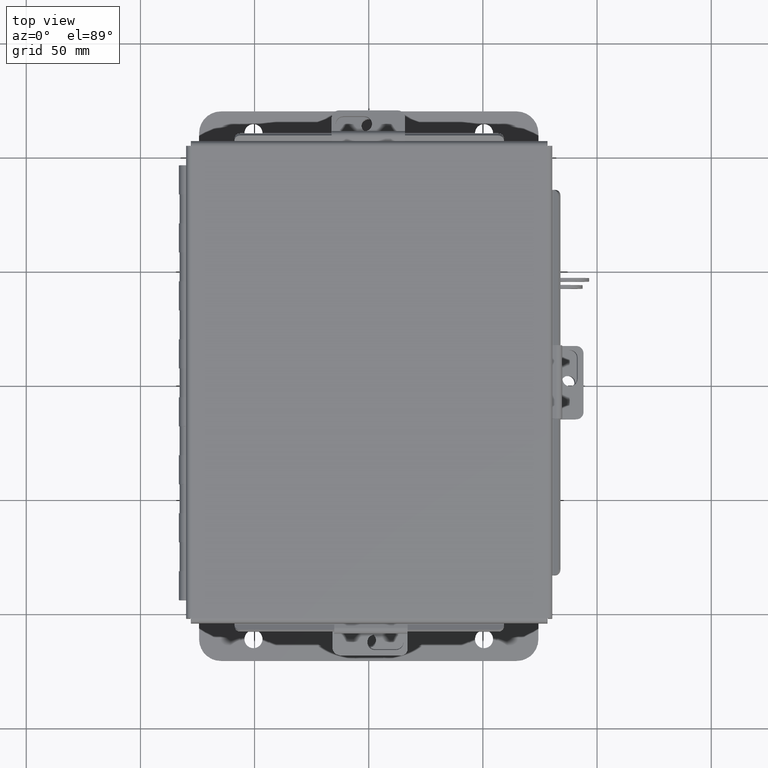
[diagram: clean part render]
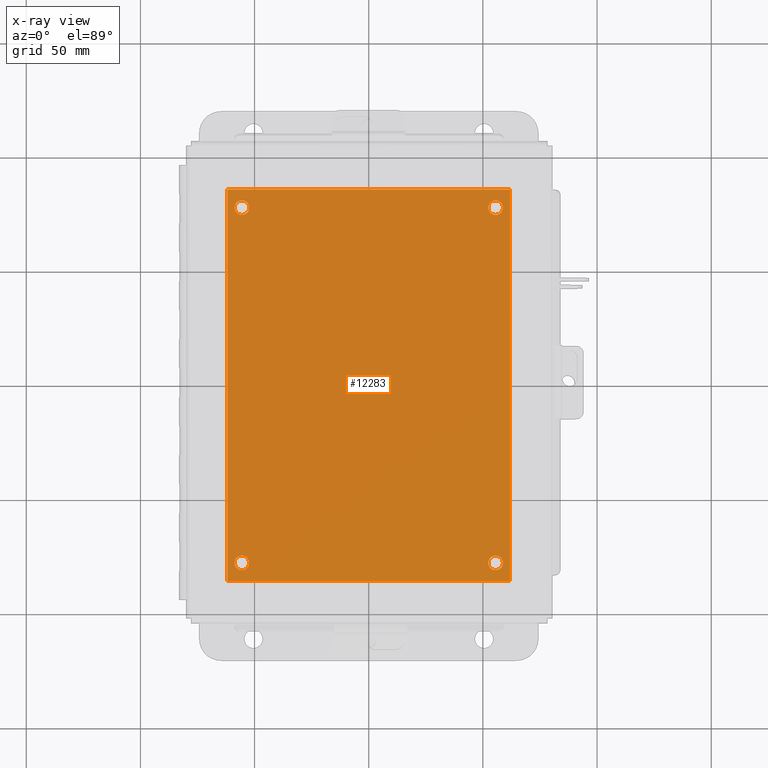
[diagram: x-ray — body ghosted, one internal face saturated and labeled with its STEP entity id]
A machine part, top view, then the same camera in x-ray: the body is ghosted and one INTERNAL B-rep face — a face not visible from any outside direction — is saturated and labeled: STEP entity #12283.
In plain terms, the highlighted planar face has unit normal (0, 0, -1).
Its self-contained STEP definition (entity closure, byte-faithful):
#131 = CARTESIAN_POINT ( 'NONE',  ( 0.0000000000000000000, 0.0000000000000000000, 0.0000000000000000000 ) ) ;
#154 = CARTESIAN_POINT ( 'NONE',  ( 4.625000000000000900, 6.437999999999997900, 0.0000000000000000000 ) ) ;
#219 = LINE ( 'NONE', #12094, #2607 ) ;
#285 = DIRECTION ( 'NONE',  ( -0.0000000000000000000, -1.000000000000000000, -0.0000000000000000000 ) ) ;
#326 = VERTEX_POINT ( 'NONE', #8792 ) ;
#656 = AXIS2_PLACEMENT_3D ( 'NONE', #15209, #7934, #7824 ) ;
#830 = CARTESIAN_POINT ( 'NONE',  ( 0.1250000000000019200, 0.3120000000000015000, 0.0000000000000000000 ) ) ;
#1004 = CARTESIAN_POINT ( 'NONE',  ( 0.3750000000000001100, 6.437999999999997900, 0.0000000000000000000 ) ) ;
#1034 = CARTESIAN_POINT ( 'NONE',  ( 4.500000000000000900, 6.437999999999997900, 0.0000000000000000000 ) ) ;
#1039 = CARTESIAN_POINT ( 'NONE',  ( 0.0000000000000000000, 6.750000000000000000, 0.0000000000000000000 ) ) ;
#1257 = CARTESIAN_POINT ( 'NONE',  ( 0.2500000000000020000, 0.3120000000000015000, 0.0000000000000000000 ) ) ;
#1299 = CARTESIAN_POINT ( 'NONE',  ( 0.0000000000000000000, 0.0000000000000000000, 0.0000000000000000000 ) ) ;
#1339 = DIRECTION ( 'NONE',  ( -1.000000000000000000, 0.0000000000000000000, 0.0000000000000000000 ) ) ;
#1417 = CARTESIAN_POINT ( 'NONE',  ( 0.1250000000000000600, 6.437999999999997900, 0.0000000000000000000 ) ) ;
#1467 = EDGE_LOOP ( 'NONE', ( #8341, #14156 ) ) ;
#1742 = ORIENTED_EDGE ( 'NONE', *, *, #9047, .F. ) ;
#1763 = ORIENTED_EDGE ( 'NONE', *, *, #2657, .F. ) ;
#2012 = CARTESIAN_POINT ( 'NONE',  ( 4.625000000000000900, 6.437999999999997900, 0.0000000000000000000 ) ) ;
#2159 = EDGE_CURVE ( 'NONE', #10019, #13365, #11050, .T. ) ;
#2287 = FACE_BOUND ( 'NONE', #11553, .T. ) ;
#2421 = CARTESIAN_POINT ( 'NONE',  ( 4.625000000000001800, 0.3120000000000020500, 0.0000000000000000000 ) ) ;
#2448 = DIRECTION ( 'NONE',  ( -1.000000000000000000, 0.0000000000000000000, 0.0000000000000000000 ) ) ;
#2486 = DIRECTION ( 'NONE',  ( -1.000000000000000000, 0.0000000000000000000, -0.0000000000000000000 ) ) ;
#2496 = CIRCLE ( 'NONE', #3930, 0.1250000000000000300 ) ;
#2607 = VECTOR ( 'NONE', #285, 39.37007874015748100 ) ;
#2657 = EDGE_CURVE ( 'NONE', #11505, #8055, #2725, .T. ) ;
#2725 = CIRCLE ( 'NONE', #6700, 0.1249999999999999000 ) ;
#2949 = VERTEX_POINT ( 'NONE', #6803 ) ;
#3101 = CARTESIAN_POINT ( 'NONE',  ( 0.0000000000000000000, 6.750000000000000000, 0.0000000000000000000 ) ) ;
#3155 = CIRCLE ( 'NONE', #14985, 0.1250000000000000600 ) ;
#3167 = CARTESIAN_POINT ( 'NONE',  ( 0.2500000000000000600, 6.437999999999997900, 0.0000000000000000000 ) ) ;
#3205 = CARTESIAN_POINT ( 'NONE',  ( 4.750000000000000000, 6.437999999999997900, 0.0000000000000000000 ) ) ;
#3366 = AXIS2_PLACEMENT_3D ( 'NONE', #1299, #9588, #2486 ) ;
#3499 = VERTEX_POINT ( 'NONE', #13478 ) ;
#3551 = AXIS2_PLACEMENT_3D ( 'NONE', #154, #8424, #1339 ) ;
#3930 = AXIS2_PLACEMENT_3D ( 'NONE', #3167, #11443, #4330 ) ;
#4073 = CARTESIAN_POINT ( 'NONE',  ( 4.625000000000001800, 0.3120000000000020500, 0.0000000000000000000 ) ) ;
#4077 = VERTEX_POINT ( 'NONE', #10153 ) ;
#4084 = LINE ( 'NONE', #14297, #13212 ) ;
#4133 = AXIS2_PLACEMENT_3D ( 'NONE', #2421, #12104, #6760 ) ;
#4184 = CIRCLE ( 'NONE', #9713, 0.1250000000000000600 ) ;
#4330 = DIRECTION ( 'NONE',  ( 1.000000000000000000, 0.0000000000000000000, 0.0000000000000000000 ) ) ;
#4357 = EDGE_CURVE ( 'NONE', #3499, #326, #5293, .T. ) ;
#4387 = ORIENTED_EDGE ( 'NONE', *, *, #8292, .T. ) ;
#4478 = EDGE_CURVE ( 'NONE', #10815, #11488, #4184, .T. ) ;
#4759 = DIRECTION ( 'NONE',  ( 0.0000000000000000000, 1.000000000000000000, 0.0000000000000000000 ) ) ;
#5018 = FACE_OUTER_BOUND ( 'NONE', #10083, .T. ) ;
#5255 = DIRECTION ( 'NONE',  ( 1.000000000000000000, 0.0000000000000000000, 0.0000000000000000000 ) ) ;
#5293 = CIRCLE ( 'NONE', #4133, 0.1249999999999999000 ) ;
#5418 = FACE_BOUND ( 'NONE', #1467, .T. ) ;
#5514 = VERTEX_POINT ( 'NONE', #131 ) ;
#5559 = CIRCLE ( 'NONE', #14170, 0.1249999999999999000 ) ;
#5676 = ORIENTED_EDGE ( 'NONE', *, *, #11622, .T. ) ;
#5887 = DIRECTION ( 'NONE',  ( 0.0000000000000000000, 0.0000000000000000000, 1.000000000000000000 ) ) ;
#5949 = EDGE_CURVE ( 'NONE', #13365, #10019, #2496, .T. ) ;
#6700 = AXIS2_PLACEMENT_3D ( 'NONE', #2012, #13374, #13583 ) ;
#6760 = DIRECTION ( 'NONE',  ( 1.000000000000000000, 0.0000000000000000000, 0.0000000000000000000 ) ) ;
#6803 = CARTESIAN_POINT ( 'NONE',  ( 4.875000000000000000, 0.0000000000000000000, 0.0000000000000000000 ) ) ;
#7823 = CIRCLE ( 'NONE', #3551, 0.1249999999999999000 ) ;
#7824 = DIRECTION ( 'NONE',  ( 1.000000000000000000, 0.0000000000000000000, 0.0000000000000000000 ) ) ;
#7934 = DIRECTION ( 'NONE',  ( 0.0000000000000000000, 0.0000000000000000000, 1.000000000000000000 ) ) ;
#8055 = VERTEX_POINT ( 'NONE', #1034 ) ;
#8211 = FACE_BOUND ( 'NONE', #13097, .T. ) ;
#8292 = EDGE_CURVE ( 'NONE', #11467, #5514, #219, .T. ) ;
#8333 = VECTOR ( 'NONE', #11982, 39.37007874015748100 ) ;
#8341 = ORIENTED_EDGE ( 'NONE', *, *, #2159, .F. ) ;
#8424 = DIRECTION ( 'NONE',  ( 0.0000000000000000000, 0.0000000000000000000, 1.000000000000000000 ) ) ;
#8755 = CARTESIAN_POINT ( 'NONE',  ( 0.3750000000000020000, 0.3120000000000015000, 0.0000000000000000000 ) ) ;
#8792 = CARTESIAN_POINT ( 'NONE',  ( 4.500000000000002700, 0.3120000000000020500, 0.0000000000000000000 ) ) ;
#9047 = EDGE_CURVE ( 'NONE', #326, #3499, #5559, .T. ) ;
#9326 = DIRECTION ( 'NONE',  ( -1.000000000000000000, -0.0000000000000000000, -0.0000000000000000000 ) ) ;
#9550 = DIRECTION ( 'NONE',  ( 0.0000000000000000000, 0.0000000000000000000, 1.000000000000000000 ) ) ;
#9588 = DIRECTION ( 'NONE',  ( 0.0000000000000000000, 0.0000000000000000000, -1.000000000000000000 ) ) ;
#9713 = AXIS2_PLACEMENT_3D ( 'NONE', #12813, #5887, #10483 ) ;
#10019 = VERTEX_POINT ( 'NONE', #1004 ) ;
#10083 = EDGE_LOOP ( 'NONE', ( #4387, #11743, #14712, #5676 ) ) ;
#10153 = CARTESIAN_POINT ( 'NONE',  ( 4.875000000000000000, 6.750000000000000000, 0.0000000000000000000 ) ) ;
#10230 = EDGE_LOOP ( 'NONE', ( #12645, #1742 ) ) ;
#10483 = DIRECTION ( 'NONE',  ( -1.000000000000000000, 0.0000000000000000000, 0.0000000000000000000 ) ) ;
#10790 = CARTESIAN_POINT ( 'NONE',  ( 0.0000000000000000000, 0.0000000000000000000, 0.0000000000000000000 ) ) ;
#10815 = VERTEX_POINT ( 'NONE', #8755 ) ;
#11050 = CIRCLE ( 'NONE', #656, 0.1250000000000000300 ) ;
#11443 = DIRECTION ( 'NONE',  ( 0.0000000000000000000, 0.0000000000000000000, 1.000000000000000000 ) ) ;
#11467 = VERTEX_POINT ( 'NONE', #3101 ) ;
#11488 = VERTEX_POINT ( 'NONE', #830 ) ;
#11505 = VERTEX_POINT ( 'NONE', #3205 ) ;
#11553 = EDGE_LOOP ( 'NONE', ( #13704, #14514 ) ) ;
#11622 = EDGE_CURVE ( 'NONE', #4077, #11467, #12509, .T. ) ;
#11743 = ORIENTED_EDGE ( 'NONE', *, *, #15340, .T. ) ;
#11871 = LINE ( 'NONE', #10790, #8333 ) ;
#11982 = DIRECTION ( 'NONE',  ( 1.000000000000000000, 0.0000000000000000000, 0.0000000000000000000 ) ) ;
#12094 = CARTESIAN_POINT ( 'NONE',  ( 0.0000000000000000000, 0.0000000000000000000, 0.0000000000000000000 ) ) ;
#12104 = DIRECTION ( 'NONE',  ( 0.0000000000000000000, 0.0000000000000000000, 1.000000000000000000 ) ) ;
#12283 = ADVANCED_FACE ( 'NONE', ( #2287, #14919, #8211, #5418, #5018 ), #14324, .F. ) ;
#12395 = DIRECTION ( 'NONE',  ( 0.0000000000000000000, 0.0000000000000000000, 1.000000000000000000 ) ) ;
#12509 = LINE ( 'NONE', #1039, #12899 ) ;
#12645 = ORIENTED_EDGE ( 'NONE', *, *, #4357, .F. ) ;
#12797 = EDGE_CURVE ( 'NONE', #8055, #11505, #7823, .T. ) ;
#12813 = CARTESIAN_POINT ( 'NONE',  ( 0.2500000000000020000, 0.3120000000000015000, 0.0000000000000000000 ) ) ;
#12899 = VECTOR ( 'NONE', #9326, 39.37007874015748100 ) ;
#13097 = EDGE_LOOP ( 'NONE', ( #1763, #13470 ) ) ;
#13212 = VECTOR ( 'NONE', #4759, 39.37007874015748100 ) ;
#13365 = VERTEX_POINT ( 'NONE', #1417 ) ;
#13374 = DIRECTION ( 'NONE',  ( 0.0000000000000000000, 0.0000000000000000000, 1.000000000000000000 ) ) ;
#13470 = ORIENTED_EDGE ( 'NONE', *, *, #12797, .F. ) ;
#13478 = CARTESIAN_POINT ( 'NONE',  ( 4.750000000000001800, 0.3120000000000020500, 0.0000000000000000000 ) ) ;
#13583 = DIRECTION ( 'NONE',  ( -1.000000000000000000, 0.0000000000000000000, 0.0000000000000000000 ) ) ;
#13704 = ORIENTED_EDGE ( 'NONE', *, *, #4478, .F. ) ;
#14156 = ORIENTED_EDGE ( 'NONE', *, *, #5949, .F. ) ;
#14170 = AXIS2_PLACEMENT_3D ( 'NONE', #4073, #12395, #5255 ) ;
#14297 = CARTESIAN_POINT ( 'NONE',  ( 4.875000000000000000, 0.0000000000000000000, 0.0000000000000000000 ) ) ;
#14324 = PLANE ( 'NONE',  #3366 ) ;
#14381 = EDGE_CURVE ( 'NONE', #2949, #4077, #4084, .T. ) ;
#14514 = ORIENTED_EDGE ( 'NONE', *, *, #15312, .F. ) ;
#14712 = ORIENTED_EDGE ( 'NONE', *, *, #14381, .T. ) ;
#14919 = FACE_BOUND ( 'NONE', #10230, .T. ) ;
#14985 = AXIS2_PLACEMENT_3D ( 'NONE', #1257, #9550, #2448 ) ;
#15209 = CARTESIAN_POINT ( 'NONE',  ( 0.2500000000000000600, 6.437999999999997900, 0.0000000000000000000 ) ) ;
#15312 = EDGE_CURVE ( 'NONE', #11488, #10815, #3155, .T. ) ;
#15340 = EDGE_CURVE ( 'NONE', #5514, #2949, #11871, .T. ) ;